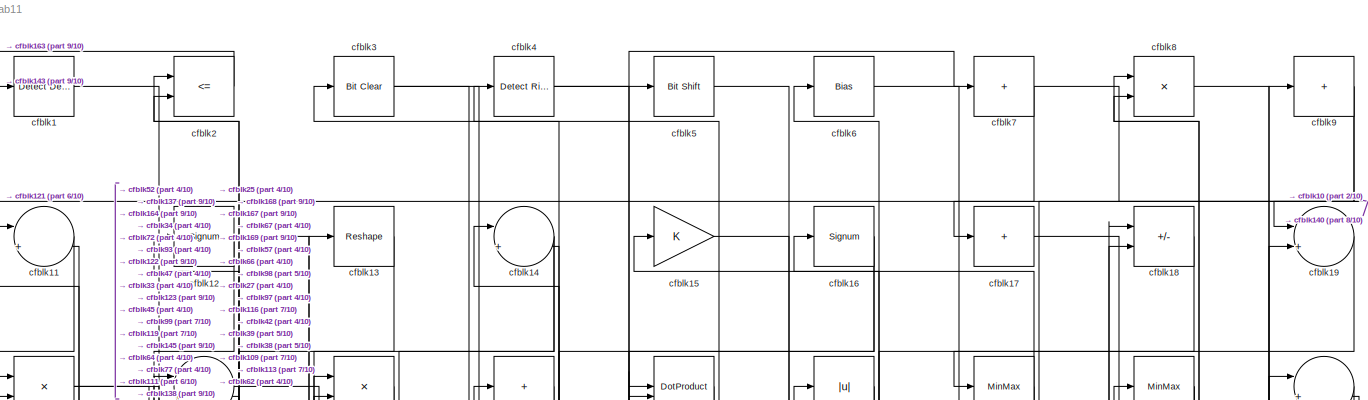
[diagram: root canvas - part 1/10, full width, top band]
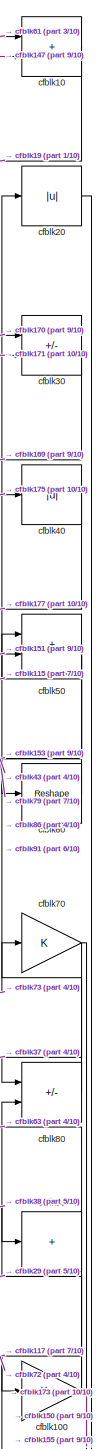
[diagram: root canvas - part 2/10, top right region]
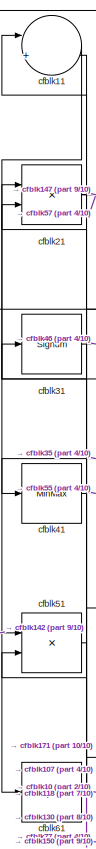
[diagram: root canvas - part 3/10, top left region]
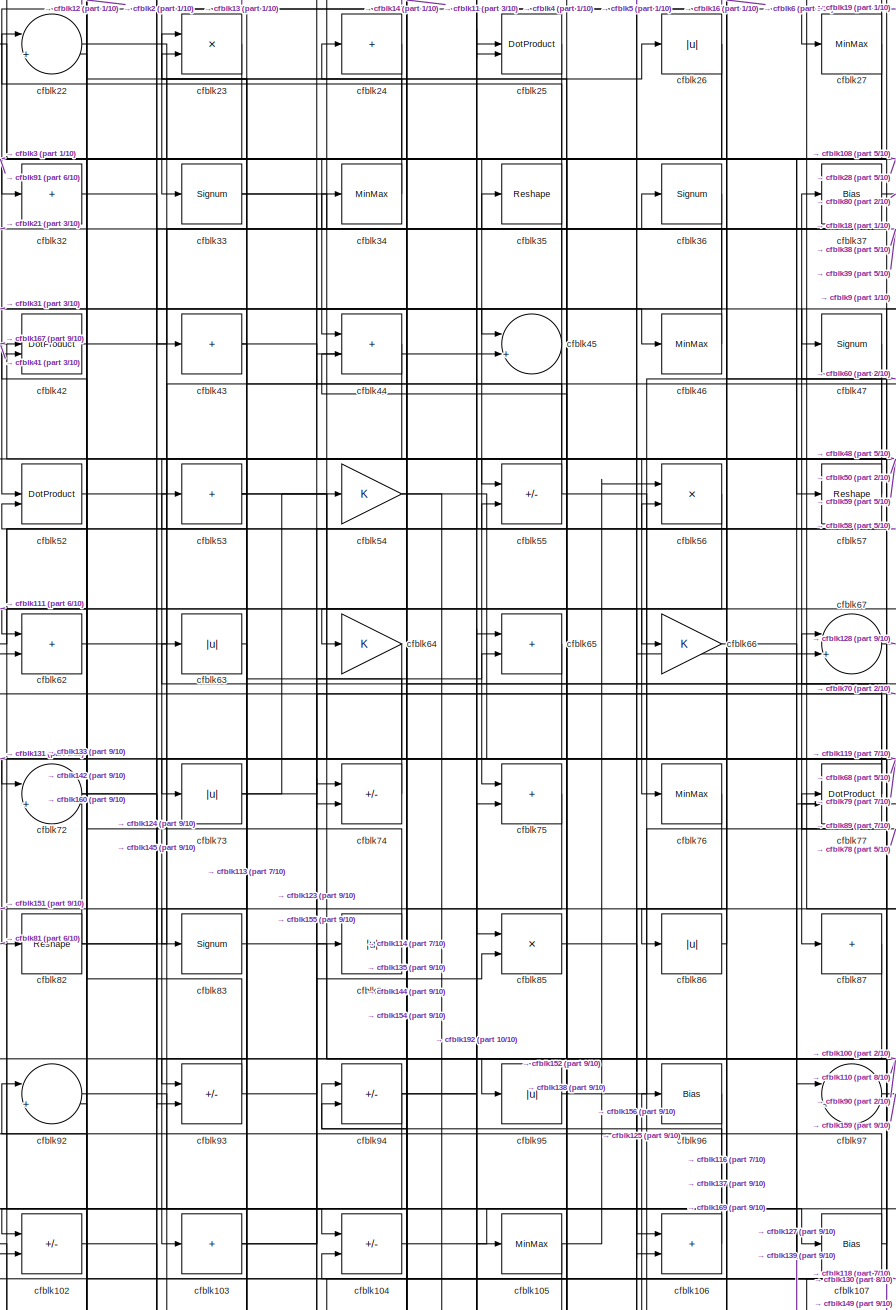
[diagram: root canvas - part 4/10, top center region]
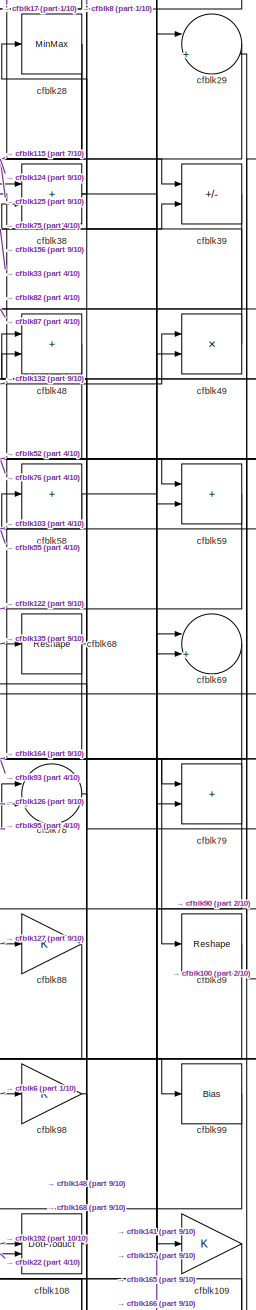
[diagram: root canvas - part 5/10, top right region]
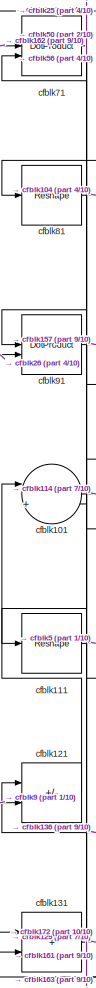
[diagram: root canvas - part 6/10, middle left region]
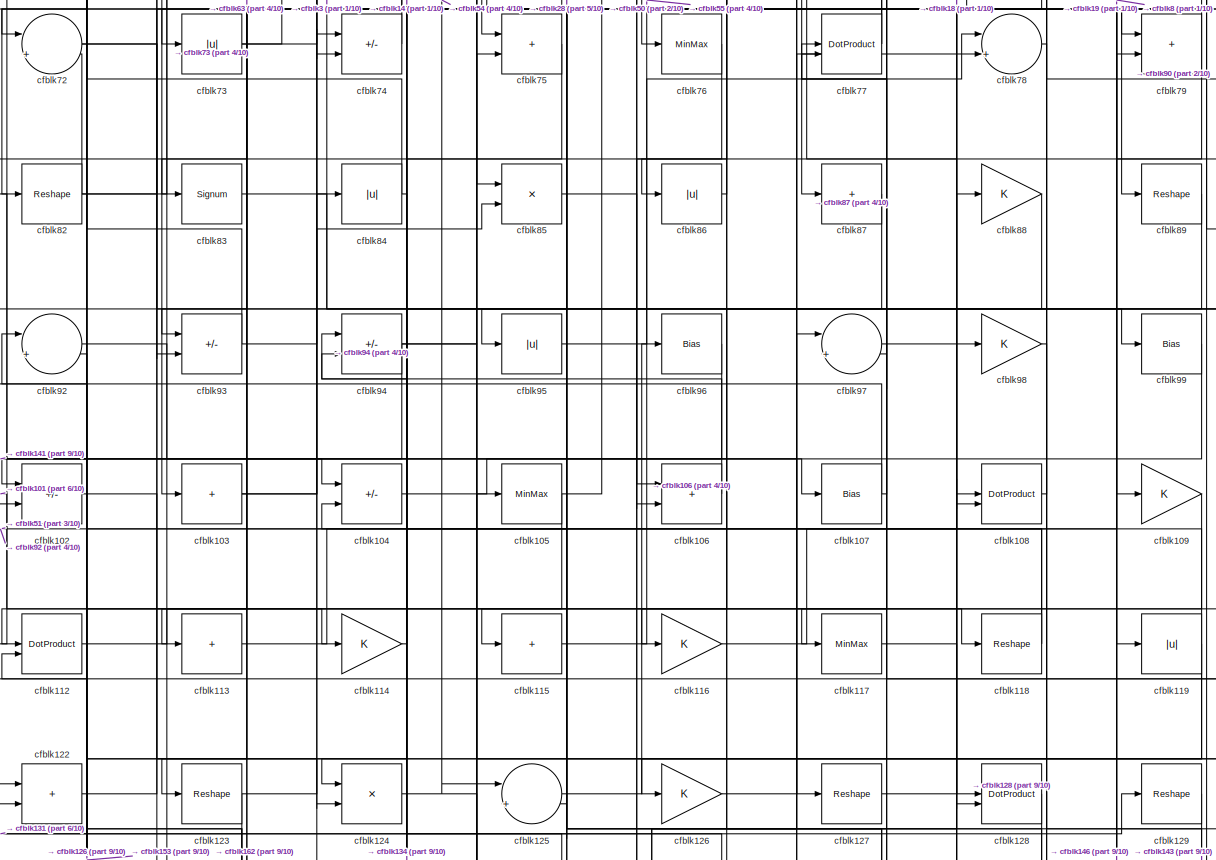
[diagram: root canvas - part 7/10, full width, middle band]
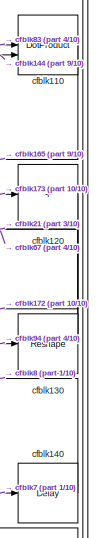
[diagram: root canvas - part 8/10, middle right region]
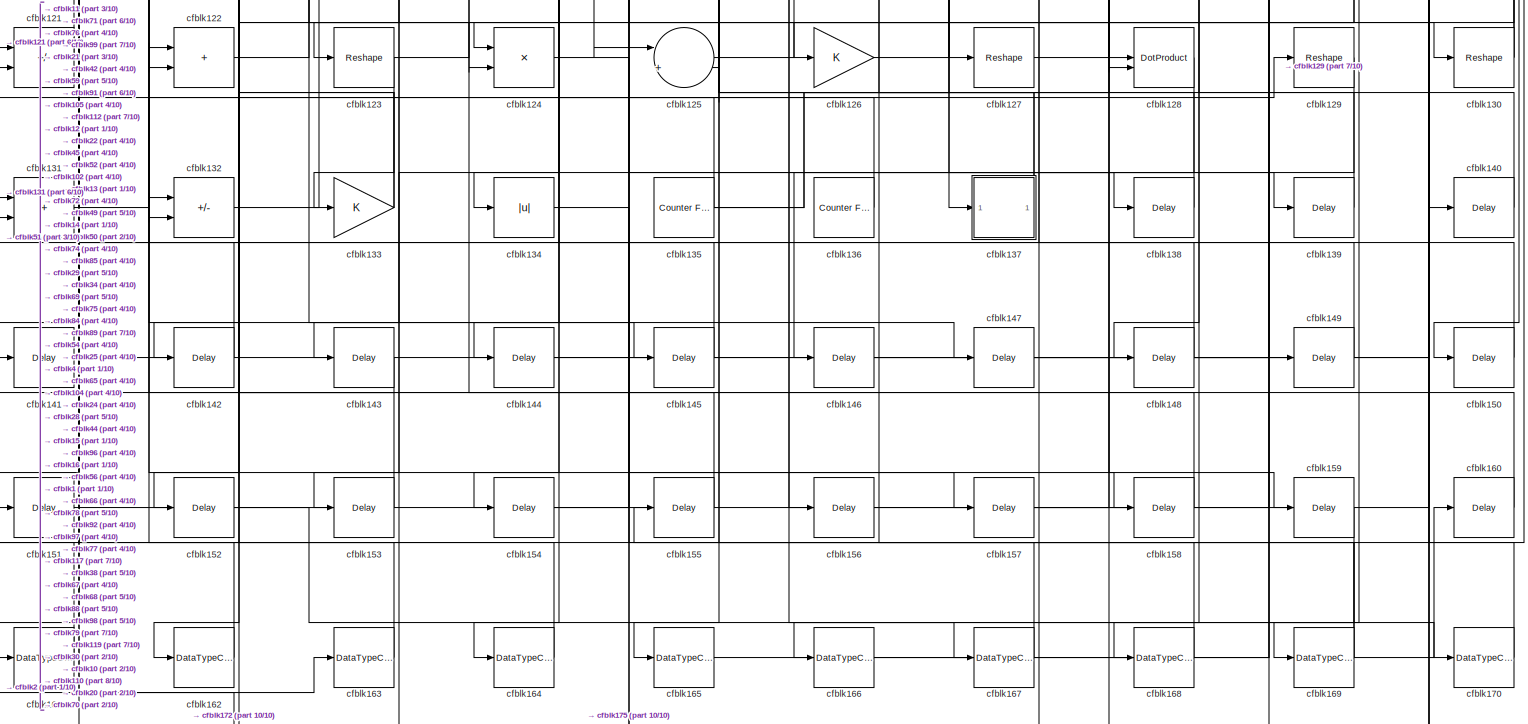
[diagram: root canvas - part 9/10, full width, bottom band]
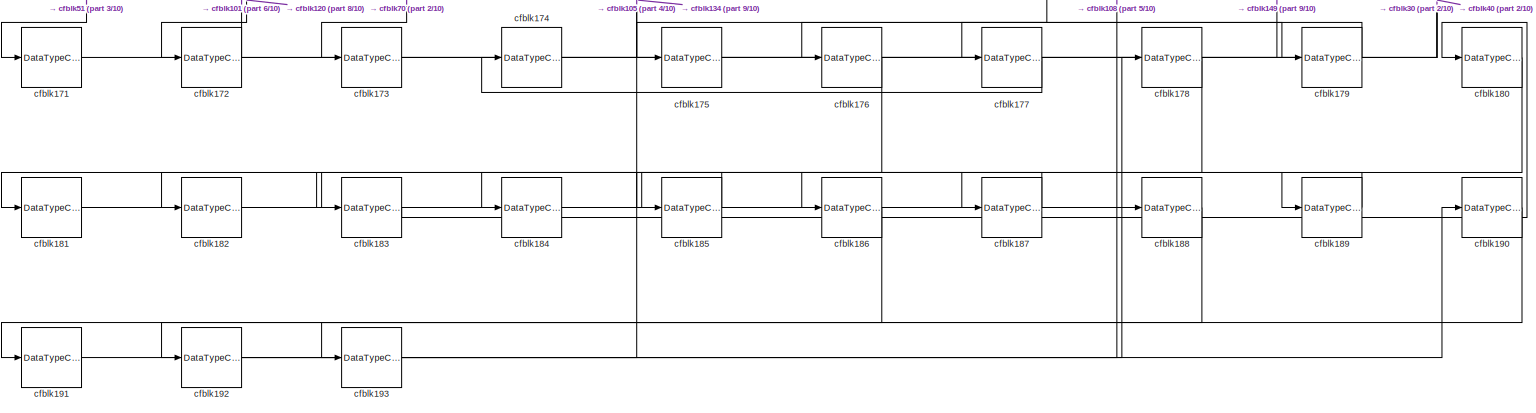
[diagram: root canvas - part 10/10, full width, bottom band]
MODEL slx_dc8848a1ab11
KIND model
CONFIG AbsTol = auto
CONFIG EnableMultiTasking = off
CONFIG FixedStep = auto
CONFIG MaxStep = auto
CONFIG MinStep = auto
CONFIG RelTol = 1e-3
CONFIG SampleTimeConstraint = Unconstrained
CONFIG SolverName = VariableStepAuto
CONFIG StartTime = 0.0
CONFIG StopTime = 10.0
BLOCK [Reference] cfblk1  REF=simulink/Logic and Bit
Operations/Detect
Decrease
  LibrarySourceBlock = hdlsllib/Logic and Bit\nOperations/Detect\nDecrease
  SourceBlock = simulink/Logic and Bit\nOperations/Detect\nDecrease
  SourceType = Detect Decrease
BLOCK [Sum] cfblk10
  IconShape = rectangular
BLOCK [Gain] cfblk100
BLOCK [Sum] cfblk101
  Inputs = |++
BLOCK [Sum] cfblk102
  IconShape = rectangular
  Inputs = +-
BLOCK [Sum] cfblk103
  IconShape = rectangular
  Inputs = +
BLOCK [Sum] cfblk104
  IconShape = rectangular
  Inputs = +-
BLOCK [MinMax] cfblk105
BLOCK [Sum] cfblk106
  IconShape = rectangular
BLOCK [Bias] cfblk107
  Bias = 0.0
  SaturateOnIntegerOverflow = off
BLOCK [DotProduct] cfblk108
  OutDataTypeStr = Inherit: Inherit via internal rule
BLOCK [Gain] cfblk109
BLOCK [Sum] cfblk11
  Inputs = |++
BLOCK [DotProduct] cfblk110
  OutDataTypeStr = Inherit: Inherit via internal rule
BLOCK [Reshape] cfblk111
BLOCK [DotProduct] cfblk112
  OutDataTypeStr = Inherit: Inherit via internal rule
BLOCK [Sum] cfblk113
  IconShape = rectangular
  Inputs = +
BLOCK [Gain] cfblk114
BLOCK [Sum] cfblk115
  IconShape = rectangular
  Inputs = +
BLOCK [Gain] cfblk116
BLOCK [MinMax] cfblk117
BLOCK [Reshape] cfblk118
BLOCK [Abs] cfblk119
  SaturateOnIntegerOverflow = off
BLOCK [Signum] cfblk12
BLOCK [Sum] cfblk120
  IconShape = rectangular
  Inputs = +
BLOCK [Sum] cfblk121
  IconShape = rectangular
  Inputs = +-
BLOCK [Sum] cfblk122
  IconShape = rectangular
BLOCK [Reshape] cfblk123
BLOCK [Product] cfblk124
  Inputs = */
  RndMeth = Zero
  SaturateOnIntegerOverflow = on
BLOCK [Sum] cfblk125
  Inputs = |++
BLOCK [Gain] cfblk126
BLOCK [Reshape] cfblk127
BLOCK [DotProduct] cfblk128
  OutDataTypeStr = Inherit: Inherit via internal rule
BLOCK [Reshape] cfblk129
BLOCK [Reshape] cfblk13
BLOCK [Reshape] cfblk130
BLOCK [Sum] cfblk131
  IconShape = rectangular
BLOCK [Sum] cfblk132
  IconShape = rectangular
  Inputs = +-
BLOCK [Gain] cfblk133
BLOCK [Abs] cfblk134
  SaturateOnIntegerOverflow = off
BLOCK [Reference] cfblk135  REF=hdlsllib/Sources/Counter
Free-Running
  SourceBlock = hdlsllib/Sources/Counter\nFree-Running
  SourceType = Counter Free-Running
BLOCK [Reference] cfblk136  REF=hdlsllib/Sources/Counter
Free-Running
  SourceBlock = hdlsllib/Sources/Counter\nFree-Running
  SourceType = Counter Free-Running
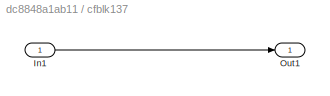
BLOCK [SubSystem] cfblk137
  LibrarySourceBlock = hdlsllib/Ports &\nSubsystems/Subsystem
BLOCK [Inport] cfblk137/In1
BLOCK [Outport] cfblk137/Out1
BLOCK [Delay] cfblk138
  InputPortMap = u0
  SampleTime = 1
BLOCK [Delay] cfblk139
  InputPortMap = u0
  SampleTime = 1
BLOCK [Sum] cfblk14
  Inputs = |++
BLOCK [Delay] cfblk140
  InputPortMap = u0
  SampleTime = 1
BLOCK [Delay] cfblk141
  InputPortMap = u0
  SampleTime = 1
BLOCK [Delay] cfblk142
  InputPortMap = u0
  SampleTime = 1
BLOCK [Delay] cfblk143
  InputPortMap = u0
  SampleTime = 1
BLOCK [Delay] cfblk144
  InputPortMap = u0
  SampleTime = 1
BLOCK [Delay] cfblk145
  InputPortMap = u0
  SampleTime = 1
BLOCK [Delay] cfblk146
  InputPortMap = u0
  SampleTime = 1
BLOCK [Delay] cfblk147
  InputPortMap = u0
  SampleTime = 1
BLOCK [Delay] cfblk148
  InputPortMap = u0
  SampleTime = 1
BLOCK [Delay] cfblk149
  InputPortMap = u0
  SampleTime = 1
BLOCK [Gain] cfblk15
BLOCK [Delay] cfblk150
  InputPortMap = u0
  SampleTime = 1
BLOCK [Delay] cfblk151
  InputPortMap = u0
  SampleTime = 1
BLOCK [Delay] cfblk152
  InputPortMap = u0
  SampleTime = 1
BLOCK [Delay] cfblk153
  InputPortMap = u0
  SampleTime = 1
BLOCK [Delay] cfblk154
  InputPortMap = u0
  SampleTime = 1
BLOCK [Delay] cfblk155
  InputPortMap = u0
  SampleTime = 1
BLOCK [Delay] cfblk156
  InputPortMap = u0
  SampleTime = 1
BLOCK [Delay] cfblk157
  InputPortMap = u0
  SampleTime = 1
BLOCK [Delay] cfblk158
  InputPortMap = u0
  SampleTime = 1
BLOCK [Delay] cfblk159
  InputPortMap = u0
  SampleTime = 1
BLOCK [Signum] cfblk16
BLOCK [Delay] cfblk160
  InputPortMap = u0
  SampleTime = 1
BLOCK [DataTypeConversion] cfblk161
  OutDataTypeStr = uint8
  RndMeth = Floor
  SaturateOnIntegerOverflow = off
BLOCK [DataTypeConversion] cfblk162
  OutDataTypeStr = uint8
  RndMeth = Floor
  SaturateOnIntegerOverflow = off
BLOCK [DataTypeConversion] cfblk163
  OutDataTypeStr = uint8
  RndMeth = Floor
  SaturateOnIntegerOverflow = off
BLOCK [DataTypeConversion] cfblk164
  OutDataTypeStr = uint8
  RndMeth = Floor
  SaturateOnIntegerOverflow = off
BLOCK [DataTypeConversion] cfblk165
  OutDataTypeStr = uint8
  RndMeth = Floor
  SaturateOnIntegerOverflow = off
BLOCK [DataTypeConversion] cfblk166
  OutDataTypeStr = uint8
  RndMeth = Floor
  SaturateOnIntegerOverflow = off
BLOCK [DataTypeConversion] cfblk167
  OutDataTypeStr = uint8
  RndMeth = Floor
  SaturateOnIntegerOverflow = off
BLOCK [DataTypeConversion] cfblk168
  OutDataTypeStr = uint8
  RndMeth = Floor
  SaturateOnIntegerOverflow = off
BLOCK [DataTypeConversion] cfblk169
  RndMeth = Floor
  SaturateOnIntegerOverflow = off
BLOCK [Sum] cfblk17
  IconShape = rectangular
  Inputs = +
BLOCK [DataTypeConversion] cfblk170
  OutDataTypeStr = uint8
  RndMeth = Floor
  SaturateOnIntegerOverflow = off
BLOCK [DataTypeConversion] cfblk171
  OutDataTypeStr = uint8
  RndMeth = Floor
  SaturateOnIntegerOverflow = off
BLOCK [DataTypeConversion] cfblk172
  RndMeth = Floor
  SaturateOnIntegerOverflow = off
BLOCK [DataTypeConversion] cfblk173
  OutDataTypeStr = uint8
  RndMeth = Floor
  SaturateOnIntegerOverflow = off
BLOCK [DataTypeConversion] cfblk174
  RndMeth = Floor
  SaturateOnIntegerOverflow = off
BLOCK [DataTypeConversion] cfblk175
  OutDataTypeStr = uint8
  RndMeth = Floor
  SaturateOnIntegerOverflow = off
BLOCK [DataTypeConversion] cfblk176
  RndMeth = Floor
  SaturateOnIntegerOverflow = off
BLOCK [DataTypeConversion] cfblk177
  OutDataTypeStr = uint8
  RndMeth = Floor
  SaturateOnIntegerOverflow = off
BLOCK [DataTypeConversion] cfblk178
  RndMeth = Floor
  SaturateOnIntegerOverflow = off
BLOCK [DataTypeConversion] cfblk179
  OutDataTypeStr = uint8
  RndMeth = Floor
  SaturateOnIntegerOverflow = off
BLOCK [Sum] cfblk18
  IconShape = rectangular
  Inputs = +-
BLOCK [DataTypeConversion] cfblk180
  RndMeth = Floor
  SaturateOnIntegerOverflow = off
BLOCK [DataTypeConversion] cfblk181
  OutDataTypeStr = uint8
  RndMeth = Floor
  SaturateOnIntegerOverflow = off
BLOCK [DataTypeConversion] cfblk182
  RndMeth = Floor
  SaturateOnIntegerOverflow = off
BLOCK [DataTypeConversion] cfblk183
  OutDataTypeStr = uint8
  RndMeth = Floor
  SaturateOnIntegerOverflow = off
BLOCK [DataTypeConversion] cfblk184
  RndMeth = Floor
  SaturateOnIntegerOverflow = off
BLOCK [DataTypeConversion] cfblk185
  OutDataTypeStr = uint8
  RndMeth = Floor
  SaturateOnIntegerOverflow = off
BLOCK [DataTypeConversion] cfblk186
  RndMeth = Floor
  SaturateOnIntegerOverflow = off
BLOCK [DataTypeConversion] cfblk187
  OutDataTypeStr = uint8
  RndMeth = Floor
  SaturateOnIntegerOverflow = off
BLOCK [DataTypeConversion] cfblk188
  RndMeth = Floor
  SaturateOnIntegerOverflow = off
BLOCK [DataTypeConversion] cfblk189
  OutDataTypeStr = uint8
  RndMeth = Floor
  SaturateOnIntegerOverflow = off
BLOCK [Sum] cfblk19
  Inputs = |++
BLOCK [DataTypeConversion] cfblk190
  RndMeth = Floor
  SaturateOnIntegerOverflow = off
BLOCK [DataTypeConversion] cfblk191
  OutDataTypeStr = uint8
  RndMeth = Floor
  SaturateOnIntegerOverflow = off
BLOCK [DataTypeConversion] cfblk192
  RndMeth = Floor
  SaturateOnIntegerOverflow = off
BLOCK [DataTypeConversion] cfblk193
  OutDataTypeStr = uint8
  RndMeth = Floor
  SaturateOnIntegerOverflow = off
BLOCK [RelationalOperator] cfblk2
  InputSameDT = off
  Operator = <=
  OutDataTypeStr = boolean
BLOCK [Abs] cfblk20
  SaturateOnIntegerOverflow = off
BLOCK [Product] cfblk21
  Inputs = */
  RndMeth = Zero
  SaturateOnIntegerOverflow = on
BLOCK [Sum] cfblk22
  Inputs = |++
BLOCK [Product] cfblk23
  Inputs = */
  RndMeth = Zero
  SaturateOnIntegerOverflow = on
BLOCK [Sum] cfblk24
  IconShape = rectangular
  Inputs = +
BLOCK [DotProduct] cfblk25
  OutDataTypeStr = Inherit: Inherit via internal rule
BLOCK [Abs] cfblk26
  SaturateOnIntegerOverflow = off
BLOCK [MinMax] cfblk27
BLOCK [MinMax] cfblk28
BLOCK [Sum] cfblk29
  Inputs = |++
BLOCK [Reference] cfblk3  REF=simulink/Logic and Bit
Operations/Bit Clear
  LibrarySourceBlock = hdlsllib/Logic and Bit\nOperations/Bit Clear
  SourceBlock = simulink/Logic and Bit\nOperations/Bit Clear
  SourceType = Bit Clear
BLOCK [Sum] cfblk30
  IconShape = rectangular
  Inputs = +-
BLOCK [Signum] cfblk31
BLOCK [Sum] cfblk32
  IconShape = rectangular
  Inputs = +
BLOCK [Signum] cfblk33
BLOCK [MinMax] cfblk34
BLOCK [Reshape] cfblk35
BLOCK [Signum] cfblk36
BLOCK [Bias] cfblk37
  Bias = 0.0
  SaturateOnIntegerOverflow = off
BLOCK [Sum] cfblk38
  IconShape = rectangular
BLOCK [Sum] cfblk39
  IconShape = rectangular
  Inputs = +-
BLOCK [Reference] cfblk4  REF=hdlsllib/Logic and Bit
Operations/Detect Rise
Nonnegative
  SourceBlock = hdlsllib/Logic and Bit\nOperations/Detect Rise\nNonnegative
  SourceType = Detect Rise Nonnegative
BLOCK [Abs] cfblk40
  SaturateOnIntegerOverflow = off
BLOCK [MinMax] cfblk41
BLOCK [DotProduct] cfblk42
  OutDataTypeStr = Inherit: Inherit via internal rule
BLOCK [Sum] cfblk43
  IconShape = rectangular
  Inputs = +
BLOCK [Sum] cfblk44
  IconShape = rectangular
BLOCK [Sum] cfblk45
  Inputs = |++
BLOCK [MinMax] cfblk46
BLOCK [Signum] cfblk47
BLOCK [Sum] cfblk48
  IconShape = rectangular
BLOCK [Product] cfblk49
  Inputs = */
  RndMeth = Zero
  SaturateOnIntegerOverflow = on
BLOCK [Reference] cfblk5  REF=hdlsllib/Logic and Bit
Operations/Bit Shift
  SourceBlock = hdlsllib/Logic and Bit\nOperations/Bit Shift
  SourceType = Bit Shift
BLOCK [Sum] cfblk50
  IconShape = rectangular
BLOCK [Product] cfblk51
  Inputs = */
  RndMeth = Zero
  SaturateOnIntegerOverflow = on
BLOCK [DotProduct] cfblk52
  OutDataTypeStr = Inherit: Inherit via internal rule
BLOCK [Sum] cfblk53
  IconShape = rectangular
  Inputs = +
BLOCK [Gain] cfblk54
BLOCK [Sum] cfblk55
  IconShape = rectangular
  Inputs = +-
BLOCK [Product] cfblk56
  Inputs = */
  RndMeth = Zero
  SaturateOnIntegerOverflow = on
BLOCK [Reshape] cfblk57
BLOCK [Sum] cfblk58
  IconShape = rectangular
  Inputs = +
BLOCK [Sum] cfblk59
  IconShape = rectangular
BLOCK [Bias] cfblk6
  Bias = 0.0
  SaturateOnIntegerOverflow = off
BLOCK [Reshape] cfblk60
BLOCK [Abs] cfblk61
  SaturateOnIntegerOverflow = off
BLOCK [Sum] cfblk62
  IconShape = rectangular
BLOCK [Abs] cfblk63
  SaturateOnIntegerOverflow = off
BLOCK [Gain] cfblk64
BLOCK [Sum] cfblk65
  IconShape = rectangular
BLOCK [Gain] cfblk66
BLOCK [Sum] cfblk67
  Inputs = |++
BLOCK [Reshape] cfblk68
BLOCK [Sum] cfblk69
  Inputs = |++
BLOCK [Sum] cfblk7
  IconShape = rectangular
  Inputs = +
BLOCK [Gain] cfblk70
BLOCK [DotProduct] cfblk71
  OutDataTypeStr = Inherit: Inherit via internal rule
BLOCK [Sum] cfblk72
  Inputs = |++
BLOCK [Abs] cfblk73
  SaturateOnIntegerOverflow = off
BLOCK [Sum] cfblk74
  IconShape = rectangular
  Inputs = +-
BLOCK [Sum] cfblk75
  IconShape = rectangular
BLOCK [MinMax] cfblk76
BLOCK [DotProduct] cfblk77
  OutDataTypeStr = Inherit: Inherit via internal rule
BLOCK [Sum] cfblk78
  Inputs = |++
BLOCK [Sum] cfblk79
  IconShape = rectangular
BLOCK [Product] cfblk8
  Inputs = */
  RndMeth = Zero
  SaturateOnIntegerOverflow = on
BLOCK [Sum] cfblk80
  IconShape = rectangular
  Inputs = +-
BLOCK [Reshape] cfblk81
BLOCK [Reshape] cfblk82
BLOCK [Signum] cfblk83
BLOCK [Abs] cfblk84
  SaturateOnIntegerOverflow = off
BLOCK [Product] cfblk85
  Inputs = */
  RndMeth = Zero
  SaturateOnIntegerOverflow = on
BLOCK [Abs] cfblk86
  SaturateOnIntegerOverflow = off
BLOCK [Sum] cfblk87
  IconShape = rectangular
  Inputs = +
BLOCK [Gain] cfblk88
BLOCK [Reshape] cfblk89
BLOCK [Sum] cfblk9
  IconShape = rectangular
  Inputs = +
BLOCK [Sum] cfblk90
  IconShape = rectangular
  Inputs = +
BLOCK [DotProduct] cfblk91
  OutDataTypeStr = Inherit: Inherit via internal rule
BLOCK [Sum] cfblk92
  Inputs = |++
BLOCK [Sum] cfblk93
  IconShape = rectangular
  Inputs = +-
BLOCK [Sum] cfblk94
  IconShape = rectangular
  Inputs = +-
BLOCK [Abs] cfblk95
  SaturateOnIntegerOverflow = off
BLOCK [Bias] cfblk96
  Bias = 0.0
  SaturateOnIntegerOverflow = off
BLOCK [Sum] cfblk97
  Inputs = |++
BLOCK [Gain] cfblk98
BLOCK [Bias] cfblk99
  Bias = 0.0
  SaturateOnIntegerOverflow = off
NET cfblk100:1 -> cfblk29:2, cfblk80:2
LINE cfblk101:1 -> cfblk114:1
LINE cfblk102:1 -> cfblk145:1
NET cfblk103:1 -> cfblk58:1, cfblk65:2
LINE cfblk104:1 -> cfblk107:1
NET cfblk105:1 -> cfblk152:1, cfblk56:1
LINE cfblk106:1 -> cfblk94:1
NET cfblk107:1 -> cfblk31:1, cfblk77:1
LINE cfblk108:1 -> cfblk48:2
LINE cfblk109:1 -> cfblk112:1
LINE cfblk10:1 -> cfblk19:1
LINE cfblk110:1 -> cfblk165:1
LINE cfblk111:1 -> cfblk5:1
LINE cfblk112:1 -> cfblk118:1
LINE cfblk113:1 -> cfblk19:2
LINE cfblk114:1 -> cfblk94:2
LINE cfblk115:1 -> cfblk50:1
LINE cfblk116:1 -> cfblk18:2
LINE cfblk117:1 -> cfblk128:1
NET cfblk118:1 -> cfblk51:2, cfblk92:2
NET cfblk119:1 -> cfblk126:1, cfblk14:2, cfblk162:1
LINE cfblk11:1 -> cfblk61:1
LINE cfblk120:1 -> cfblk172:1
LINE cfblk121:1 -> cfblk101:1
LINE cfblk122:1 -> cfblk13:1
NET cfblk123:1 -> cfblk133:1, cfblk85:2
LINE cfblk124:1 -> cfblk158:1
LINE cfblk125:1 -> cfblk96:1
LINE cfblk126:1 -> cfblk78:2
LINE cfblk127:1 -> cfblk88:1
LINE cfblk128:1 -> cfblk146:1
LINE cfblk129:1 -> cfblk143:1
NET cfblk12:1 -> cfblk47:1, cfblk52:1
NET cfblk130:1 -> cfblk21:2, cfblk67:1
LINE cfblk131:1 -> cfblk129:1
LINE cfblk132:1 -> cfblk49:1
NET cfblk133:1 -> cfblk22:2, cfblk92:1
LINE cfblk134:1 -> cfblk175:1
NET cfblk135:1 -> cfblk34:1, cfblk68:1, cfblk97:1
LINE cfblk136:1 -> cfblk121:1
LINE cfblk137/In1:1 -> cfblk137/Out1:1
NET cfblk137:1 -> cfblk24:1, cfblk56:2
LINE cfblk138:1 -> cfblk104:2
LINE cfblk139:1 -> cfblk44:2
LINE cfblk13:1 -> cfblk33:1
LINE cfblk140:1 -> cfblk8:2
LINE cfblk141:1 -> cfblk59:2
LINE cfblk142:1 -> cfblk51:1
LINE cfblk143:1 -> cfblk1:1
LINE cfblk144:1 -> cfblk110:2
LINE cfblk145:1 -> cfblk14:1
LINE cfblk146:1 -> cfblk79:2
LINE cfblk147:1 -> cfblk10:2
LINE cfblk148:1 -> cfblk132:1
LINE cfblk149:1 -> cfblk77:2
NET cfblk14:1 -> cfblk123:1, cfblk72:1
LINE cfblk150:1 -> cfblk11:1
LINE cfblk151:1 -> cfblk50:2
LINE cfblk152:1 -> cfblk170:1
LINE cfblk153:1 -> cfblk112:2
LINE cfblk154:1 -> cfblk25:1
LINE cfblk155:1 -> cfblk74:1
LINE cfblk156:1 -> cfblk38:1
LINE cfblk157:1 -> cfblk49:2
LINE cfblk158:1 -> cfblk122:1
LINE cfblk159:1 -> cfblk166:1
LINE cfblk15:1 -> cfblk167:1
LINE cfblk160:1 -> cfblk52:2
LINE cfblk161:1 -> cfblk131:1
LINE cfblk162:1 -> cfblk71:1
LINE cfblk163:1 -> cfblk71:2
LINE cfblk164:1 -> cfblk12:1
LINE cfblk165:1 -> cfblk69:1
LINE cfblk166:1 -> cfblk69:2
LINE cfblk167:1 -> cfblk42:1
LINE cfblk168:1 -> cfblk15:1
NET cfblk169:1 -> cfblk160:1, cfblk16:1, cfblk65:1
NET cfblk16:1 -> cfblk25:2, cfblk64:1
LINE cfblk170:1 -> cfblk30:1
LINE cfblk171:1 -> cfblk30:2
NET cfblk172:1 -> cfblk101:2, cfblk149:1
LINE cfblk173:1 -> cfblk120:1
LINE cfblk174:1 -> cfblk179:1
LINE cfblk175:1 -> cfblk40:1
LINE cfblk176:1 -> cfblk181:1
LINE cfblk177:1 -> cfblk174:1
LINE cfblk178:1 -> cfblk183:1
LINE cfblk179:1 -> cfblk176:1
LINE cfblk17:1 -> cfblk39:1
LINE cfblk180:1 -> cfblk185:1
LINE cfblk181:1 -> cfblk178:1
LINE cfblk182:1 -> cfblk187:1
LINE cfblk183:1 -> cfblk180:1
LINE cfblk184:1 -> cfblk189:1
LINE cfblk185:1 -> cfblk182:1
LINE cfblk186:1 -> cfblk191:1
LINE cfblk187:1 -> cfblk184:1
LINE cfblk188:1 -> cfblk193:1
LINE cfblk189:1 -> cfblk186:1
LINE cfblk18:1 -> cfblk66:1
LINE cfblk190:1 -> cfblk192:1
LINE cfblk191:1 -> cfblk188:1
NET cfblk192:1 -> cfblk105:1, cfblk108:1
LINE cfblk193:1 -> cfblk190:1
LINE cfblk19:1 -> cfblk27:1
LINE cfblk1:1 -> cfblk137:1
LINE cfblk20:1 -> cfblk155:1
NET cfblk21:1 -> cfblk147:1, cfblk57:1
LINE cfblk22:1 -> cfblk108:2
LINE cfblk23:1 -> cfblk32:1
LINE cfblk24:1 -> cfblk44:1
LINE cfblk25:1 -> cfblk81:1
NET cfblk26:1 -> cfblk91:2, cfblk95:1
NET cfblk27:1 -> cfblk3:1, cfblk62:1, cfblk62:2
NET cfblk28:1 -> cfblk115:1, cfblk125:2, cfblk75:1
LINE cfblk29:1 -> cfblk124:1
LINE cfblk2:1 -> cfblk163:1
LINE cfblk30:1 -> cfblk169:1
LINE cfblk31:1 -> cfblk46:1
LINE cfblk32:1 -> cfblk43:1
NET cfblk33:1 -> cfblk38:2, cfblk45:1
LINE cfblk34:1 -> cfblk2:1
NET cfblk35:1 -> cfblk22:1, cfblk41:1
LINE cfblk36:1 -> cfblk74:2
LINE cfblk37:1 -> cfblk80:1
NET cfblk38:1 -> cfblk8:1, cfblk90:1
LINE cfblk39:1 -> cfblk87:1
NET cfblk3:1 -> cfblk45:2, cfblk99:1
LINE cfblk40:1 -> cfblk177:1
LINE cfblk41:1 -> cfblk55:1
LINE cfblk42:1 -> cfblk18:1
NET cfblk43:1 -> cfblk60:1, cfblk93:1
LINE cfblk44:1 -> cfblk83:1
NET cfblk45:1 -> cfblk142:1, cfblk35:1
LINE cfblk46:1 -> cfblk21:1
LINE cfblk47:1 -> cfblk103:1
LINE cfblk48:1 -> cfblk76:1
LINE cfblk49:1 -> cfblk28:1
NET cfblk4:1 -> cfblk138:1, cfblk7:1
NET cfblk50:1 -> cfblk153:1, cfblk79:1, cfblk86:1, cfblk91:1
LINE cfblk51:1 -> cfblk171:1
LINE cfblk52:1 -> cfblk59:1
NET cfblk53:1 -> cfblk106:1, cfblk23:1, cfblk85:1
NET cfblk54:1 -> cfblk125:1, cfblk89:1
NET cfblk55:1 -> cfblk119:1, cfblk23:2
LINE cfblk56:1 -> cfblk111:1
LINE cfblk57:1 -> cfblk6:1
NET cfblk58:1 -> cfblk29:1, cfblk55:2
LINE cfblk59:1 -> cfblk122:2
LINE cfblk5:1 -> cfblk67:2
LINE cfblk60:1 -> cfblk37:1
LINE cfblk61:1 -> cfblk10:1
LINE cfblk62:1 -> cfblk9:1
LINE cfblk63:1 -> cfblk113:1
LINE cfblk64:1 -> cfblk131:2
LINE cfblk65:1 -> cfblk82:1
LINE cfblk66:1 -> cfblk139:1
LINE cfblk67:1 -> cfblk128:2
NET cfblk68:1 -> cfblk48:1, cfblk93:2
LINE cfblk69:1 -> cfblk164:1
LINE cfblk6:1 -> cfblk98:1
NET cfblk70:1 -> cfblk150:1, cfblk173:1
LINE cfblk71:1 -> cfblk161:1
NET cfblk72:1 -> cfblk100:1, cfblk124:2
NET cfblk73:1 -> cfblk54:1, cfblk70:1
LINE cfblk74:1 -> cfblk53:1
LINE cfblk75:1 -> cfblk144:1
LINE cfblk76:1 -> cfblk151:1
NET cfblk77:1 -> cfblk11:2, cfblk4:1
LINE cfblk78:1 -> cfblk168:1
NET cfblk79:1 -> cfblk106:2, cfblk73:1
NET cfblk7:1 -> cfblk140:1, cfblk17:1
LINE cfblk80:1 -> cfblk20:1
LINE cfblk81:1 -> cfblk104:1
NET cfblk82:1 -> cfblk26:1, cfblk39:2, cfblk72:2
LINE cfblk83:1 -> cfblk110:1
NET cfblk84:1 -> cfblk154:1, cfblk42:2
LINE cfblk85:1 -> cfblk156:1
LINE cfblk86:1 -> cfblk36:1
LINE cfblk87:1 -> cfblk116:1
LINE cfblk88:1 -> cfblk132:2
LINE cfblk89:1 -> cfblk134:1
LINE cfblk8:1 -> cfblk109:1
NET cfblk90:1 -> cfblk117:1, cfblk63:1
LINE cfblk91:1 -> cfblk157:1
LINE cfblk92:1 -> cfblk127:1
NET cfblk93:1 -> cfblk2:2, cfblk84:1
NET cfblk94:1 -> cfblk102:2, cfblk130:1, cfblk75:2
LINE cfblk95:1 -> cfblk78:1
LINE cfblk96:1 -> cfblk102:1
LINE cfblk97:1 -> cfblk159:1
LINE cfblk98:1 -> cfblk148:1
LINE cfblk99:1 -> cfblk141:1
NET cfblk9:1 -> cfblk121:2, cfblk97:2
note: NET lines group one-source signal fan-out (src -> all destinations, sorted); 1:1 wires keep LINE
